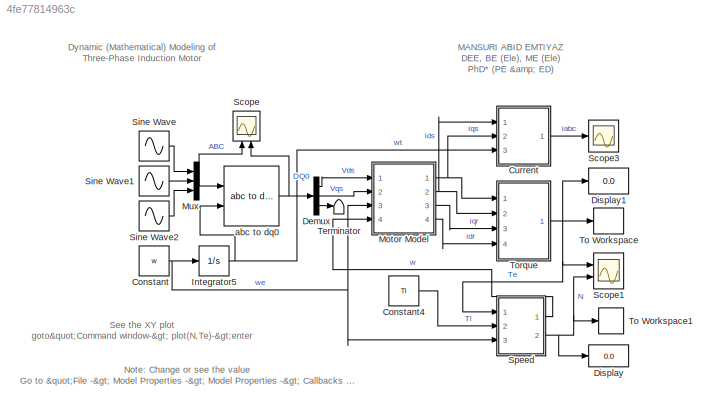
MODEL slx_4fe77814963c
KIND model
CONFIG AbsTol = auto
CONFIG EnableMultiTasking = off
CONFIG FixedStep = 1e-6
CONFIG InitFcn = Rs=1.405; % Stator Resistor (ohm)\nRr=1.395; % Rotor Resistor (ohm)\nLs=0.178039; % Stator Inductance (H)\nLr=0.178039; % Rotor Inductance (H)\nLm=0.1722; % Mutual Inductance (H)\nJ=0.0131; % Motor Inertia (Kg.m^2) \nP=4; % Pole\nTl=26.50; % Load Torque (N.m)\nw=2*pi*50; % w=2*pi*frequency\n\n%%%%%\n% Ls=Lls+Lm\n% Lr=Llr+Lm\n% Nominal power = 4000 (VA)\n% Voltage (line-line) = 400 (Vrms)\n% Frequency = 50 (Hz)\n%...<+14ch>
CONFIG MaxStep = auto
CONFIG MinStep = auto
CONFIG RelTol = 1e-3
CONFIG SampleTimeConstraint = Unconstrained
CONFIG Solver = ode5
CONFIG SolverName = ode5
CONFIG StartTime = 0.0
CONFIG StopTime = 1
BLOCK [Constant] Constant
  Value = w
BLOCK [Constant] Constant4
  Value = Tl
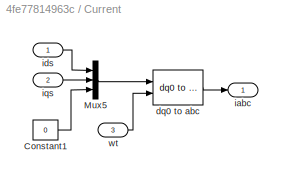
BLOCK [SubSystem] Current
  Ports = [3, 1]
  RequestExecContextInheritance = off
BLOCK [Constant] Current/Constant1
  Value = 0
BLOCK [Mux] Current/Mux5
  DisplayOption = bar
  Inputs = 3
  Ports = [3, 1]
BLOCK [Reference] Current/dq0 to abc  REF=powerlib_meascontrol/Transformations/dq0 to abc
  Ports = [2, 1]
  SourceBlock = powerlib_meascontrol/Transformations/dq0 to abc
  SourceProductBaseCode = PS
  SourceProductName = Simscape Electrical
  SourceType = dq0 to abc Transformation
BLOCK [Outport] Current/iabc
  IconDisplay = Port number
BLOCK [Inport] Current/ids
  IconDisplay = Port number
BLOCK [Inport] Current/iqs
  IconDisplay = Port number
  Port = 2
BLOCK [Inport] Current/wt
  IconDisplay = Port number
  Port = 3
BLOCK [Demux] Demux
  DisplayOption = bar
  Outputs = 3
  Ports = [1, 3]
BLOCK [Display] Display
  Decimation = 1
  Ports = [1]
BLOCK [Display] Display1
  Decimation = 1
  Ports = [1]
BLOCK [Integrator] Integrator5
  Ports = [1, 1]
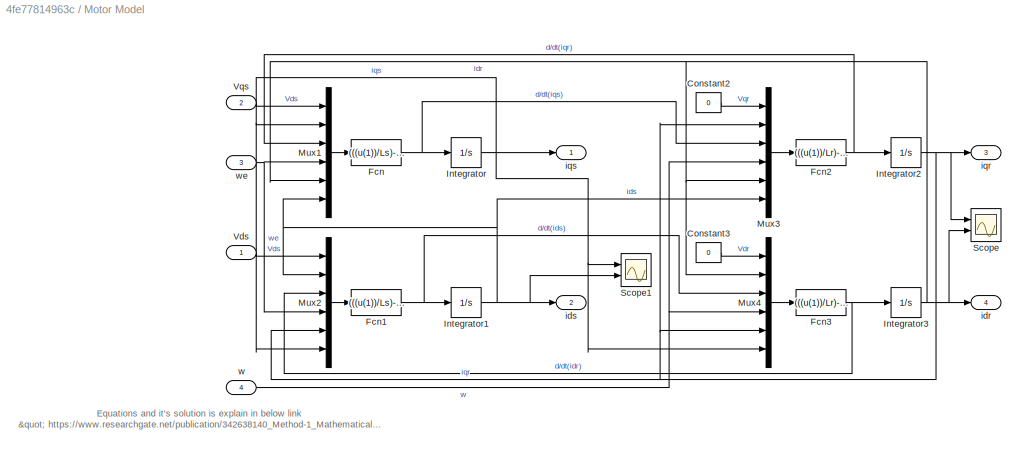
BLOCK [SubSystem] Motor Model
  Ports = [4, 4]
  RequestExecContextInheritance = off
BLOCK [Constant] Motor Model/Constant2
  Value = 0
BLOCK [Constant] Motor Model/Constant3
  Value = 0
BLOCK [Fcn] Motor Model/Fcn
  Expr = (((u(1))/Ls)-((Rs*u(2))/Ls)-((u(3)*Lm)/Ls)-(u(4)*u(6))-((u(4)*Lm*u(5))/Ls))
BLOCK [Fcn] Motor Model/Fcn1
  Expr = (((u(1))/Ls)-((Rs*u(2))/Ls)-((u(3)*Lm)/Ls)+(u(4)*u(6))+((u(4)*Lm*u(5))/Ls))
BLOCK [Fcn] Motor Model/Fcn2
  Expr = (((u(1))/Lr)-((Rr*u(2))/Lr)-((u(3)*Lm)/Lr)-(u(4)*u(5))-((u(4)*Lm*u(6))/Lr))
BLOCK [Fcn] Motor Model/Fcn3
  Expr = (((u(1))/Lr)-((Rr*u(2))/Lr)-((u(3)*Lm)/Lr)+(u(4)*u(5))+((u(4)*Lm*u(6))/Lr))
BLOCK [Integrator] Motor Model/Integrator
  Ports = [1, 1]
BLOCK [Integrator] Motor Model/Integrator1
  Ports = [1, 1]
BLOCK [Integrator] Motor Model/Integrator2
  Ports = [1, 1]
BLOCK [Integrator] Motor Model/Integrator3
  Ports = [1, 1]
BLOCK [Mux] Motor Model/Mux1
  DisplayOption = bar
  Inputs = 6
  Ports = [6, 1]
BLOCK [Mux] Motor Model/Mux2
  DisplayOption = bar
  Inputs = 6
  Ports = [6, 1]
BLOCK [Mux] Motor Model/Mux3
  DisplayOption = bar
  Inputs = 6
  Ports = [6, 1]
BLOCK [Mux] Motor Model/Mux4
  DisplayOption = bar
  Inputs = 6
  Ports = [6, 1]
BLOCK [Scope] Motor Model/Scope
  Floating = off
  NumInputPorts = 2
  Ports = [2]
  ScopeSpecificationString = Simulink.scopes.TimeScopeBlockCfg('CurrentConfiguration', extmgr.ConfigurationSet(extmgr.Configuration('Core','General UI',true,'FigureColor',[1 1 1]),extmgr.Configuration('Core','Source UI',true),extmgr.Configuration('Sources','WiredSimulink',true,'DataLoggingVariableName','ScopeData1'),extmgr.Configuration('Visuals','Time Domain',true,'TimeAxisLabels','All','SerializedDisplays',{struct('MinYLimR...<+1688ch>
BLOCK [Scope] Motor Model/Scope1
  Floating = off
  NumInputPorts = 2
  Ports = [2]
  ScopeSpecificationString = Simulink.scopes.TimeScopeBlockCfg('CurrentConfiguration', extmgr.ConfigurationSet(extmgr.Configuration('Core','General UI',true,'FigureColor',[1 1 1]),extmgr.Configuration('Core','Source UI',true),extmgr.Configuration('Sources','WiredSimulink',true,'DataLoggingVariableName','ScopeData2'),extmgr.Configuration('Visuals','Time Domain',true,'TimeAxisLabels','All','SerializedDisplays',{struct('MinYLimR...<+1686ch>
BLOCK [Inport] Motor Model/Vds
  IconDisplay = Port number
BLOCK [Inport] Motor Model/Vqs
  IconDisplay = Port number
  Port = 2
BLOCK [Outport] Motor Model/idr
  IconDisplay = Port number
  Port = 4
BLOCK [Outport] Motor Model/ids
  IconDisplay = Port number
  Port = 2
BLOCK [Outport] Motor Model/iqr
  IconDisplay = Port number
  Port = 3
BLOCK [Outport] Motor Model/iqs
  IconDisplay = Port number
BLOCK [Inport] Motor Model/w
  IconDisplay = Port number
  Port = 4
BLOCK [Inport] Motor Model/we
  IconDisplay = Port number
  Port = 3
BLOCK [Mux] Mux
  DisplayOption = bar
  Inputs = 3
  Ports = [3, 1]
BLOCK [Scope] Scope
  Floating = off
  NumInputPorts = 2
  Ports = [2]
  ScopeSpecificationString = Simulink.scopes.TimeScopeBlockCfg('CurrentConfiguration', extmgr.ConfigurationSet(extmgr.Configuration('Core','General UI',true,'FigureColor',[1 1 1]),extmgr.Configuration('Core','Source UI',true),extmgr.Configuration('Sources','WiredSimulink',true),extmgr.Configuration('Visuals','Time Domain',true,'TimeAxisLabels','All','SerializedDisplays',{struct('MinYLimReal','-466.875','MaxYLimReal','466.875'...<+3137ch>
BLOCK [Scope] Scope1
  Floating = off
  NumInputPorts = 2
  Ports = [2]
  ScopeSpecificationString = Simulink.scopes.TimeScopeBlockCfg('CurrentConfiguration', extmgr.ConfigurationSet(extmgr.Configuration('Core','General UI',true,'FigureColor',[1 1 1]),extmgr.Configuration('Core','Source UI',true),extmgr.Configuration('Sources','WiredSimulink',true,'DataLoggingVariableName','ScopeData1'),extmgr.Configuration('Visuals','Time Domain',true,'TimeAxisLabels','All','SerializedDisplays',{struct('MinYLimR...<+2259ch>
BLOCK [Scope] Scope3
  Floating = off
  NumInputPorts = 1
  Ports = [1]
  ScopeSpecificationString = Simulink.scopes.TimeScopeBlockCfg('CurrentConfiguration', extmgr.ConfigurationSet(extmgr.Configuration('Core','General UI',true,'FigureColor',[1 1 1]),extmgr.Configuration('Core','Source UI',true),extmgr.Configuration('Sources','WiredSimulink',true,'DataLoggingVariableName','ScopeData1','DataLogging',true),extmgr.Configuration('Visuals','Time Domain',true,'TimeAxisLabels','All','SerializedDisplays...<+2477ch>
BLOCK [Sin] Sine Wave
  Amplitude = 373.5
  Frequency = 2*pi*50
  Ports = [0, 1]
  SampleTime = 0
BLOCK [Sin] Sine Wave1
  Amplitude = 373.5
  Frequency = 2*pi*50
  Phase = -((2*pi)/3)
  Ports = [0, 1]
  SampleTime = 0
BLOCK [Sin] Sine Wave2
  Amplitude = 373.5
  Frequency = 2*pi*50
  Phase = ((2*pi)/3)
  Ports = [0, 1]
  SampleTime = 0
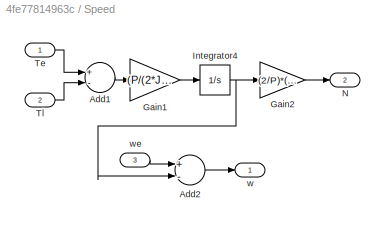
BLOCK [SubSystem] Speed
  Ports = [3, 2]
  RequestExecContextInheritance = off
BLOCK [Sum] Speed/Add1
  InputSameDT = off
  Inputs = +-
  OutDataTypeStr = Inherit: Inherit via internal rule
  Ports = [2, 1]
  SaturateOnIntegerOverflow = off
BLOCK [Sum] Speed/Add2
  InputSameDT = off
  Inputs = +-
  OutDataTypeStr = Inherit: Inherit via internal rule
  Ports = [2, 1]
  SaturateOnIntegerOverflow = off
BLOCK [Gain] Speed/Gain1
  Gain = (P/(2*J))
  OutDataTypeStr = Inherit: Inherit via internal rule
  ParamDataTypeStr = Inherit: Inherit via internal rule
  SaturateOnIntegerOverflow = off
BLOCK [Gain] Speed/Gain2
  Gain = (2/P)*(60/(2*pi))
  OutDataTypeStr = Inherit: Inherit via internal rule
  ParamDataTypeStr = Inherit: Inherit via internal rule
  SaturateOnIntegerOverflow = off
BLOCK [Integrator] Speed/Integrator4
  Ports = [1, 1]
BLOCK [Outport] Speed/N
  IconDisplay = Port number
  Port = 2
BLOCK [Inport] Speed/Te
  IconDisplay = Port number
BLOCK [Inport] Speed/Tl
  IconDisplay = Port number
  Port = 2
BLOCK [Outport] Speed/w
  IconDisplay = Port number
BLOCK [Inport] Speed/we
  IconDisplay = Port number
  Port = 3
BLOCK [Terminator] Terminator
BLOCK [ToWorkspace] To Workspace
  FixptAsFi = on
  MaxDataPoints = inf
  Ports = [1]
  SampleTime = -1
  VariableName = Te
BLOCK [ToWorkspace] To Workspace1
  FixptAsFi = on
  MaxDataPoints = inf
  Ports = [1]
  SampleTime = -1
  VariableName = N
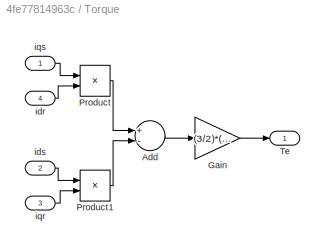
BLOCK [SubSystem] Torque
  Ports = [4, 1]
  RequestExecContextInheritance = off
BLOCK [Sum] Torque/Add
  InputSameDT = off
  Inputs = +-
  OutDataTypeStr = Inherit: Inherit via internal rule
  Ports = [2, 1]
  SaturateOnIntegerOverflow = off
BLOCK [Gain] Torque/Gain
  Gain = (3/2)*(P/2)*Lm
  OutDataTypeStr = Inherit: Inherit via internal rule
  ParamDataTypeStr = Inherit: Inherit via internal rule
  SaturateOnIntegerOverflow = off
BLOCK [Product] Torque/Product
  InputSameDT = off
  OutDataTypeStr = Inherit: Inherit via internal rule
  Ports = [2, 1]
  RndMeth = Floor
  SaturateOnIntegerOverflow = off
BLOCK [Product] Torque/Product1
  InputSameDT = off
  OutDataTypeStr = Inherit: Inherit via internal rule
  Ports = [2, 1]
  RndMeth = Floor
  SaturateOnIntegerOverflow = off
BLOCK [Outport] Torque/Te
  IconDisplay = Port number
BLOCK [Inport] Torque/idr
  IconDisplay = Port number
  Port = 4
BLOCK [Inport] Torque/ids
  IconDisplay = Port number
  Port = 2
BLOCK [Inport] Torque/iqr
  IconDisplay = Port number
  Port = 3
BLOCK [Inport] Torque/iqs
  IconDisplay = Port number
BLOCK [Reference] abc to dq0  REF=powerlib_meascontrol/Transformations/abc to dq0
  Ports = [2, 1]
  SourceBlock = powerlib_meascontrol/Transformations/abc to dq0
  SourceProductBaseCode = PS
  SourceProductName = Simscape Electrical
  SourceType = abc to dq0 Transformation
ANNOTATION (root): Dynamic (Mathematical) Modeling of Three-Phase Induction Motor
ANNOTATION (root): See the XY plot goto" Command window-> plot(N,Te)->enter
ANNOTATION (root): MANSURI ABID EMTIYAZ DEE, BE (Ele), ME (Ele) PhD* (PE & ED)
ANNOTATION (root): Note: Change or see the value Go to "File -> Model Properties -> Model Properties -> Callbacks -> InitFcn"
ANNOTATION Motor Model: Equations and it's solution is explain in below link " https://www.researchgate.net/publication/342638140_Method-1_Mathematical_Modeling_of_Three_Phase_Induction_Motor_Equations_and_its_Solution_-_Hand_outs "
LINE Constant4:1 -> Speed:2
NET Constant:1 -> Integrator5:1, Motor Model:3, Speed:3
LINE Current/Constant1:1 -> Current/Mux5:3
LINE Current/Mux5:1 -> Current/dq0 to abc:1
LINE Current/dq0 to abc:1 -> Current/iabc:1
LINE Current/ids:1 -> Current/Mux5:1
LINE Current/iqs:1 -> Current/Mux5:2
LINE Current/wt:1 -> Current/dq0 to abc:2
LINE Current:1 -> Scope3:1
LINE Demux:1 -> Motor Model:1
LINE Demux:2 -> Motor Model:2
LINE Demux:3 -> Terminator:1
NET Integrator5:1 -> Current:3, abc to dq0:2
LINE Motor Model/Constant2:1 -> Motor Model/Mux3:1
LINE Motor Model/Constant3:1 -> Motor Model/Mux4:1
NET Motor Model/Fcn1:1 -> Motor Model/Integrator1:1, Motor Model/Mux4:3
NET Motor Model/Fcn2:1 -> Motor Model/Integrator2:1, Motor Model/Mux1:3
NET Motor Model/Fcn3:1 -> Motor Model/Integrator3:1, Motor Model/Mux2:3
NET Motor Model/Fcn:1 -> Motor Model/Integrator:1, Motor Model/Mux3:3
NET Motor Model/Integrator1:1 -> Motor Model/Mux1:6, Motor Model/Mux2:2, Motor Model/Mux3:6, Motor Model/Scope1:2, Motor Model/ids:1
NET Motor Model/Integrator2:1 -> Motor Model/Mux2:5, Motor Model/Mux3:2, Motor Model/Mux4:5, Motor Model/Scope:1, Motor Model/iqr:1
NET Motor Model/Integrator3:1 -> Motor Model/Mux1:5, Motor Model/Mux3:5, Motor Model/Mux4:2, Motor Model/Scope:2, Motor Model/idr:1
NET Motor Model/Integrator:1 -> Motor Model/Mux1:2, Motor Model/Mux2:6, Motor Model/Mux4:6, Motor Model/Scope1:1, Motor Model/iqs:1
LINE Motor Model/Mux1:1 -> Motor Model/Fcn:1
LINE Motor Model/Mux2:1 -> Motor Model/Fcn1:1
LINE Motor Model/Mux3:1 -> Motor Model/Fcn2:1
LINE Motor Model/Mux4:1 -> Motor Model/Fcn3:1
LINE Motor Model/Vds:1 -> Motor Model/Mux2:1
LINE Motor Model/Vqs:1 -> Motor Model/Mux1:1
NET Motor Model/w:1 -> Motor Model/Mux3:4, Motor Model/Mux4:4
NET Motor Model/we:1 -> Motor Model/Mux1:4, Motor Model/Mux2:4
NET Motor Model:1 -> Current:2, Torque:1
NET Motor Model:2 -> Current:1, Torque:2
LINE Motor Model:3 -> Torque:3
LINE Motor Model:4 -> Torque:4
NET Mux:1 -> Scope:1, abc to dq0:1
LINE Sine Wave1:1 -> Mux:2
LINE Sine Wave2:1 -> Mux:3
LINE Sine Wave:1 -> Mux:1
LINE Speed/Add1:1 -> Speed/Gain1:1
LINE Speed/Add2:1 -> Speed/w:1
LINE Speed/Gain1:1 -> Speed/Integrator4:1
LINE Speed/Gain2:1 -> Speed/N:1
NET Speed/Integrator4:1 -> Speed/Add2:2, Speed/Gain2:1
LINE Speed/Te:1 -> Speed/Add1:1
LINE Speed/Tl:1 -> Speed/Add1:2
LINE Speed/we:1 -> Speed/Add2:1
LINE Speed:1 -> Motor Model:4
NET Speed:2 -> Display:1, Scope1:2, To Workspace1:1
LINE Torque/Add:1 -> Torque/Gain:1
LINE Torque/Gain:1 -> Torque/Te:1
LINE Torque/Product1:1 -> Torque/Add:2
LINE Torque/Product:1 -> Torque/Add:1
LINE Torque/idr:1 -> Torque/Product:2
LINE Torque/ids:1 -> Torque/Product1:1
LINE Torque/iqr:1 -> Torque/Product1:2
LINE Torque/iqs:1 -> Torque/Product:1
NET Torque:1 -> Display1:1, Scope1:1, Speed:1, To Workspace:1
NET abc to dq0:1 -> Demux:1, Scope:2
note: NET lines group one-source signal fan-out (src -> all destinations, sorted); 1:1 wires keep LINE
